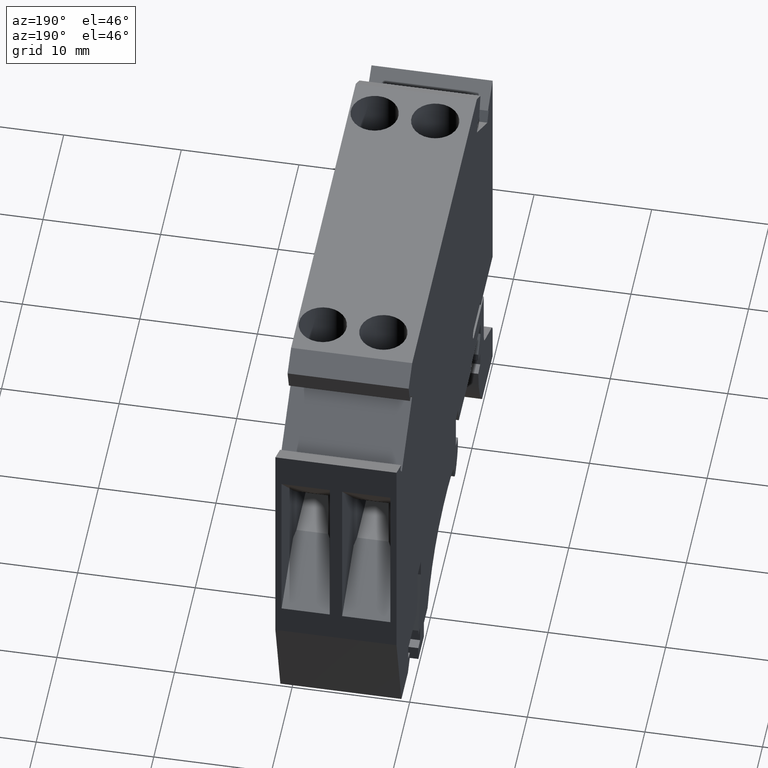
[diagram: clean part render]
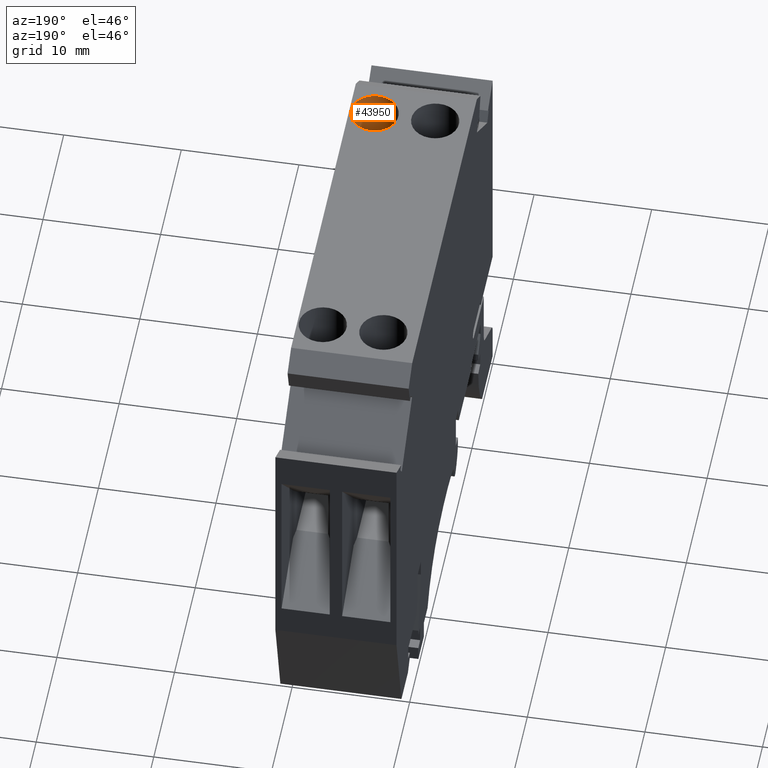
[diagram: same view with one face highlighted and labeled with its STEP entity id]
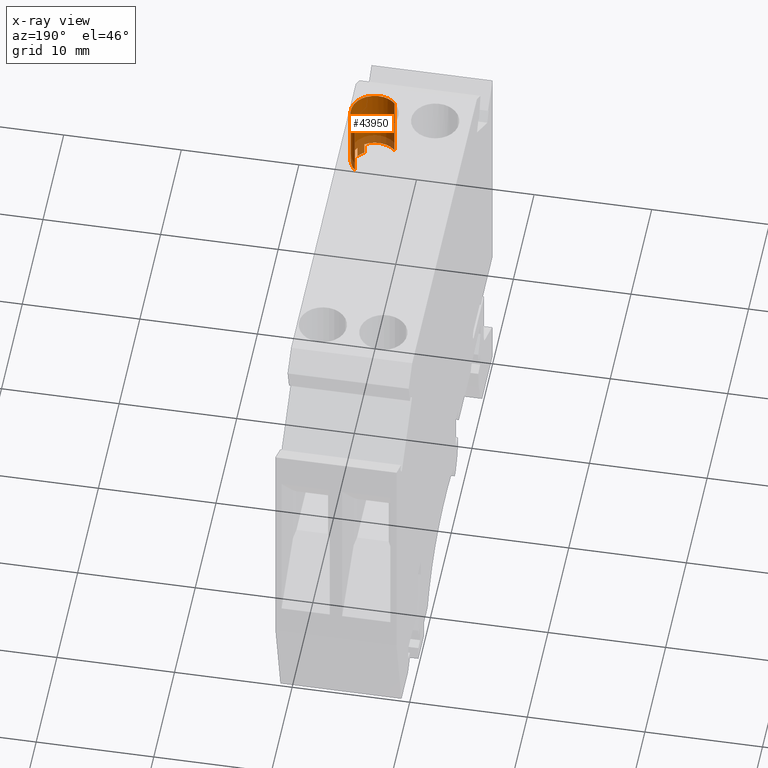
[diagram: x-ray of the same camera — body ghosted, the highlighted face saturated]
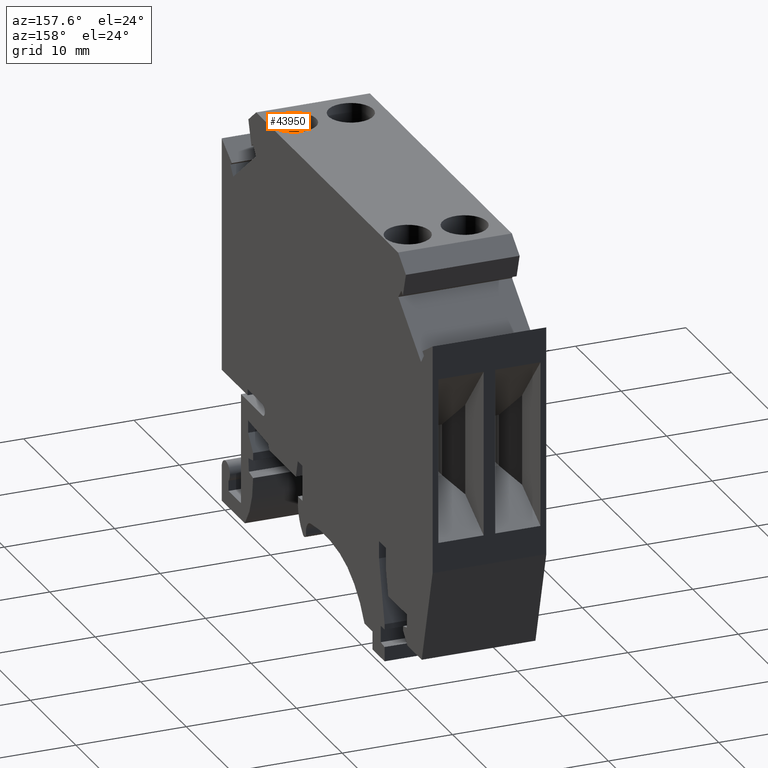
[diagram: same view with one face highlighted and labeled with its STEP entity id]
A machine part, auxiliary view. The second image highlights one B-rep face of the part: STEP entity #43950.
The next image is the same camera in x-ray: the body ghosted, the highlighted face saturated — about 18% of this face is hidden behind the body in this view.
A second angle (auxiliary view) of the same face is appended — the face is thin or edge-on in the first view.
In plain terms, the highlighted cylindrical surface (edge-blend (fillet) strip) has radius 2.025 mm, axis along (-0, -0, 1).
Its self-contained STEP definition (entity closure, byte-faithful):
#27310=CARTESIAN_POINT('',(-34.1770985338077,42.9295237515583,
8.15000000000001));
#27320=DIRECTION('',(-1.23259516440783E-32,1.,-2.46519032881566E-32));
#27330=DIRECTION('',(0.707106781186548,-2.46519032881566E-32,
0.707106781186547));
#27340=AXIS2_PLACEMENT_3D('',#27310,#27320,#27330);
#27350=CIRCLE('',#27340,2.025);
#27360=CARTESIAN_POINT('',(-36.1621992869182,42.9295237515583,
7.75000000000004));
#27370=VERTEX_POINT('',#27360);
#27380=CARTESIAN_POINT('',(-32.7452073019049,42.9295237515583,
9.58189123190277));
#27390=VERTEX_POINT('',#27380);
#27400=EDGE_CURVE('',#27370,#27390,#27350,.T.);
#27420=CARTESIAN_POINT('',(-35.6089897657105,42.9295237515583,
6.71810876809725));
#27430=VERTEX_POINT('',#27420);
#27460=EDGE_CURVE('',#27430,#27370,#27350,.T.);
#43290=CARTESIAN_POINT('',(-34.1770985338077,42.9295237515583,
8.15000000000001));
#43300=DIRECTION('',(-1.23259516440783E-32,1.,-2.46519032881566E-32));
#43310=DIRECTION('',(0.707106781186548,-2.46519032881566E-32,
0.707106781186547));
#43320=AXIS2_PLACEMENT_3D('',#43290,#43300,#43310);
#43330=CYLINDRICAL_SURFACE('',#43320,2.025);
#43340=CARTESIAN_POINT('',(-35.3399524311492,42.9295237515583,
9.80782864417215));
#43350=DIRECTION('',(-1.23259516440783E-32,1.,-2.46519032881566E-32));
#43360=VECTOR('',#43350,1.);
#43370=LINE('',#43340,#43360);
#43380=CARTESIAN_POINT('',(-35.3399524311492,36.2755174006122,
9.80782864417215));
#43390=VERTEX_POINT('',#43380);
#43400=CARTESIAN_POINT('',(-35.3399524311492,37.2755174006122,
9.80782864417215));
#43410=VERTEX_POINT('',#43400);
#43420=EDGE_CURVE('',#43390,#43410,#43370,.T.);
#43430=ORIENTED_EDGE('',*,*,#43420,.F.);
#43440=CARTESIAN_POINT('',(-34.1770985338077,37.2755174006122,
8.15000000000001));
#43450=DIRECTION('',(-1.23259516440783E-32,1.,-2.46519032881566E-32));
#43460=DIRECTION('',(0.707106781186548,2.61472919763157E-32,
0.707106781186547));
#43470=AXIS2_PLACEMENT_3D('',#43440,#43450,#43460);
#43480=CIRCLE('',#43470,2.025);
#43490=CARTESIAN_POINT('',(-32.7452073019049,37.2755174006122,
9.58189123190277));
#43500=VERTEX_POINT('',#43490);
#43510=EDGE_CURVE('',#43410,#43500,#43480,.T.);
#43520=ORIENTED_EDGE('',*,*,#43510,.F.);
#43530=CARTESIAN_POINT('',(-32.7452073019049,42.9295237515583,
9.58189123190277));
#43540=DIRECTION('',(-1.23259516440783E-32,1.,-2.46519032881566E-32));
#43550=VECTOR('',#43540,1.);
#43560=LINE('',#43530,#43550);
#43570=EDGE_CURVE('',#43500,#27390,#43560,.T.);
#43580=ORIENTED_EDGE('',*,*,#43570,.F.);
#43590=ORIENTED_EDGE('',*,*,#27400,.T.);
#43600=ORIENTED_EDGE('',*,*,#27460,.T.);
#43610=CARTESIAN_POINT('',(-35.6089897657105,42.9295237515583,
6.71810876809725));
#43620=DIRECTION('',(-1.23259516440783E-32,1.,-2.46519032881566E-32));
#43630=VECTOR('',#43620,1.);
#43640=LINE('',#43610,#43630);
#43650=CARTESIAN_POINT('',(-35.6089897657105,37.2755174006122,
6.71810876809725));
#43660=VERTEX_POINT('',#43650);
#43670=EDGE_CURVE('',#43660,#27430,#43640,.T.);
#43680=ORIENTED_EDGE('',*,*,#43670,.T.);
#43690=CARTESIAN_POINT('',(-34.1770985338077,37.2755174006122,
8.15000000000001));
#43700=DIRECTION('',(-1.23259516440783E-32,1.,-2.46519032881566E-32));
#43710=DIRECTION('',(0.707106781186548,2.61472919763157E-32,
0.707106781186547));
#43720=AXIS2_PLACEMENT_3D('',#43690,#43700,#43710);
#43730=CIRCLE('',#43720,2.025);
#43740=CARTESIAN_POINT('',(-35.8349271779798,37.2755174006122,
9.31285389734157));
#43750=VERTEX_POINT('',#43740);
#43760=EDGE_CURVE('',#43660,#43750,#43730,.T.);
#43770=ORIENTED_EDGE('',*,*,#43760,.F.);
#43780=CARTESIAN_POINT('',(-35.8349271779798,42.9295237515583,
9.31285389734157));
#43790=DIRECTION('',(-1.23259516440783E-32,1.,-2.46519032881566E-32));
#43800=VECTOR('',#43790,1.);
#43810=LINE('',#43780,#43800);
#43820=CARTESIAN_POINT('',(-35.8349271779798,36.2755174006122,
9.31285389734157));
#43830=VERTEX_POINT('',#43820);
#43840=EDGE_CURVE('',#43830,#43750,#43810,.T.);
#43850=ORIENTED_EDGE('',*,*,#43840,.T.);
#43860=CARTESIAN_POINT('',(-34.1770985338077,36.2755174006122,
8.15000000000001));
#43870=DIRECTION('',(-1.23259516440783E-32,1.,-2.46519032881566E-32));
#43880=DIRECTION('',(0.707106781186548,2.61472919763157E-32,
0.707106781186547));
#43890=AXIS2_PLACEMENT_3D('',#43860,#43870,#43880);
#43900=CIRCLE('',#43890,2.025);
#43910=EDGE_CURVE('',#43830,#43390,#43900,.T.);
#43920=ORIENTED_EDGE('',*,*,#43910,.F.);
#43930=EDGE_LOOP('',(#43920,#43850,#43770,#43680,#43600,#43590,#43580,
#43520,#43430));
#43940=FACE_OUTER_BOUND('',#43930,.T.);
#43950=ADVANCED_FACE('',(#43940),#43330,.F.);